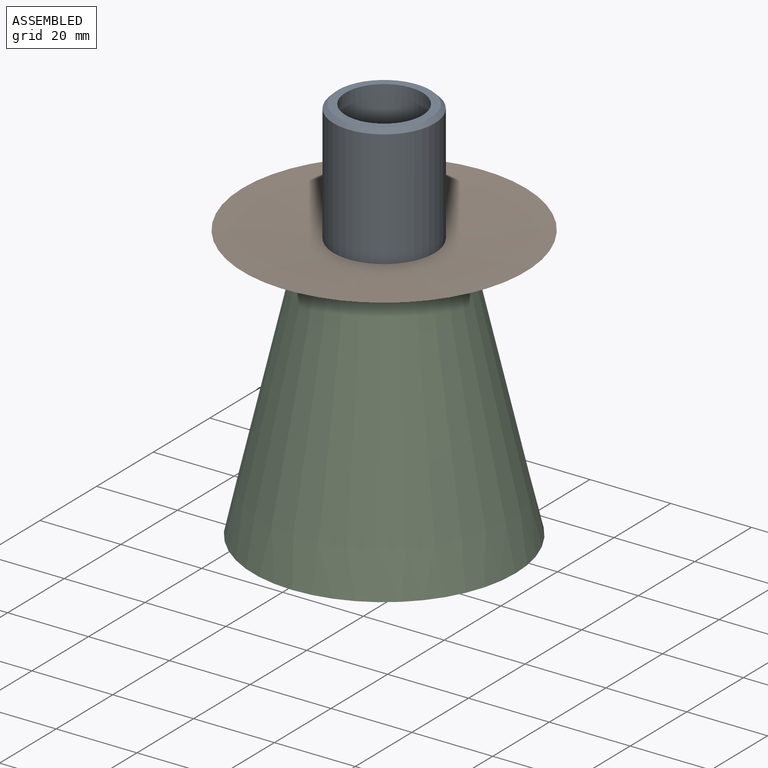
[diagram: assembled view]
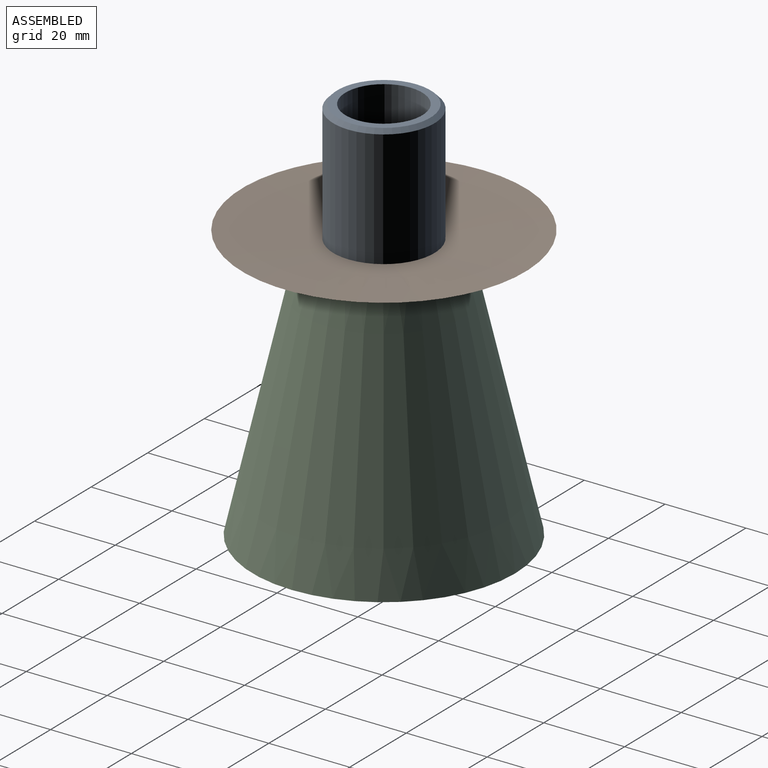
[diagram: assembled view, second angle]
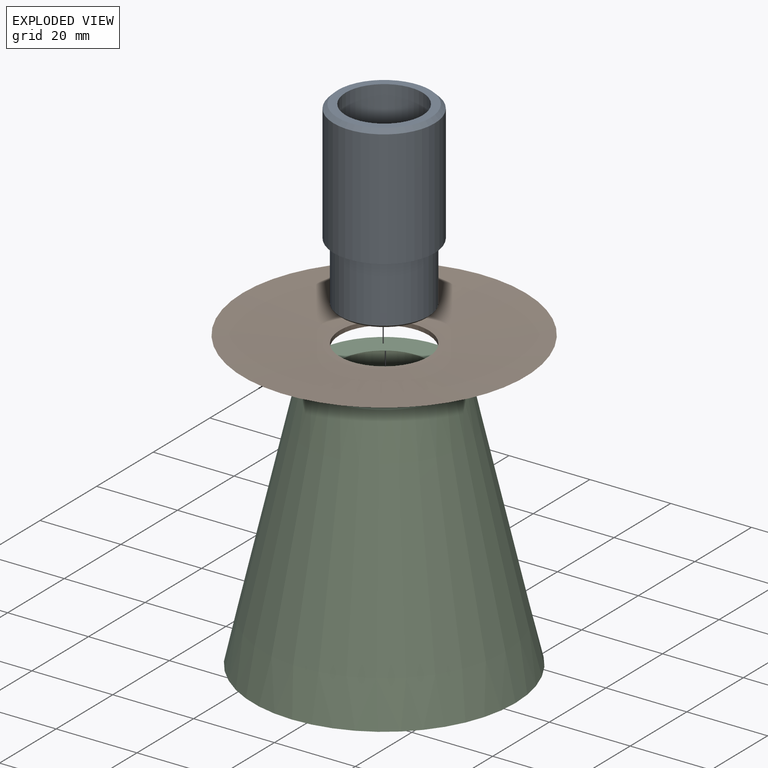
[diagram: exploded view]
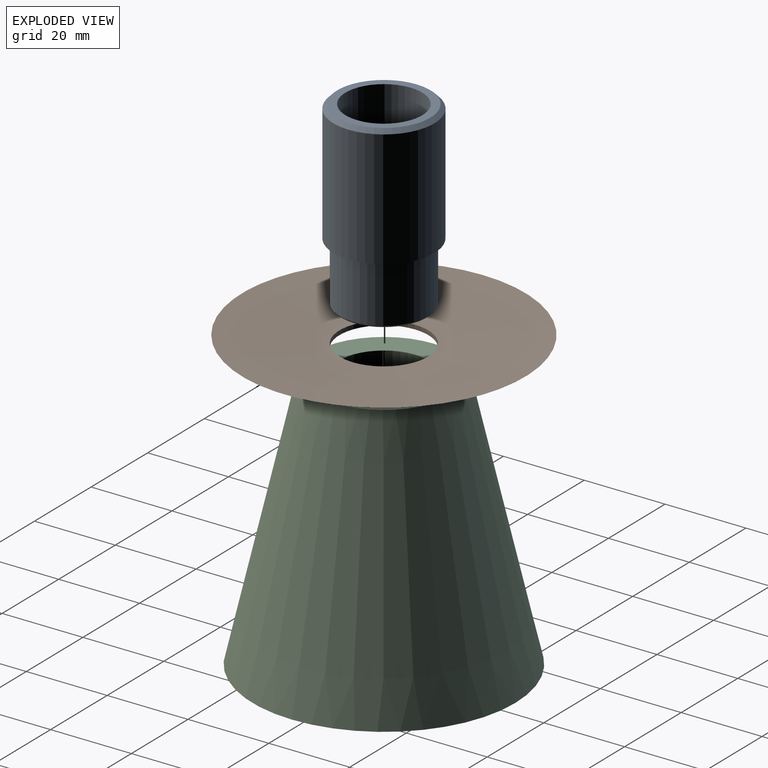
[diagram: exploded view, second angle]
ASSEMBLY  parts=3 mates=2
PART A: 9 faces, bbox 25x25x45 mm
  f0: cylinder r=12.5mm len=29mm, axis (0,0,-1), area 2277.7mm2, adj f2,f5
  f1: plane 23x23mm, normal (0,0,1), area 131.9mm2, adj f5,f7
  f2: plane 25x25mm, normal (0,0,-1), area 110.7mm2, adj f0,f3
  f3: cylinder r=11mm len=22mm, axis (0,0,1), area 1002.2mm2, adj f2,f6
  f4: plane 21x21mm, normal (0,0,-1), area 346.4mm2, adj f6
  f5: cone r=11.5mm half-angle=45deg, axis (0,0,-1), area 106.6mm2, adj f0,f1
  f6: cone r=10.5mm half-angle=45deg, axis (0,0,1), area 47.8mm2, adj f3,f4
  f7: cylinder r=9.5mm len=44.53mm, axis (0,0,1), area 2658mm2, adj f1,f8
  f8: plane 19x19mm, normal (0,0,1), area 283.5mm2, adj f7
PART B: 5 faces, bbox 70x70x3 mm
  f0: plane 25x25mm, normal (0,0,-1), area 110.7mm2, adj f3,f4
  f1: plane 25x25mm, normal (0,0,1), area 110.7mm2, adj f2,f4
  f2: cone r=35mm half-angle=85.1deg, axis (0,0,1), area 3370.1mm2, adj f1,f3
  f3: torus R=12.5mm, axis (0,0,-1), area 3406.7mm2, adj f0,f2
  f4: cylinder r=11mm len=22mm, axis (0,0,1), area 73.1mm2, adj f0,f1
PART C: 7 faces, bbox 65x65x65 mm
  f0: plane 35x35mm, normal (0,0,1), area 582mm2, adj f1,f3
  f1: cone r=17.5mm half-angle=13deg, axis (0,0,-1), area 10478.5mm2, adj f0,f2
  f2: plane 65x65mm, normal (0,0,-1), area 3318.3mm2, adj f1
  f3: cylinder r=11mm len=22mm, axis (0,0,1), area 1036.7mm2, adj f0,f4
  f4: plane 22x22mm, normal (0,0,1), area 301.6mm2, adj f3,f5
  f5: cylinder r=5mm len=15mm, axis (0,0,1), area 471.2mm2, adj f4,f6
  f6: plane 10x10mm, normal (0,0,1), area 78.5mm2, adj f5
PLACE A t=(-0.79,-0.09,34.33)mm fixed
PLACE B t=(-0.79,-0.09,33.17)mm fixed
PLACE C t=(-0.79,-0.09,-6.09)mm fixed
MATE slider A.f3 <-> C.f3  axis (0,0,-1) through (-0.79,-0.09,19.33)mm
MATE slider B.f2 <-> A.f7  axis (0,0,-1) through (-0.79,-0.09,33.17)mm
